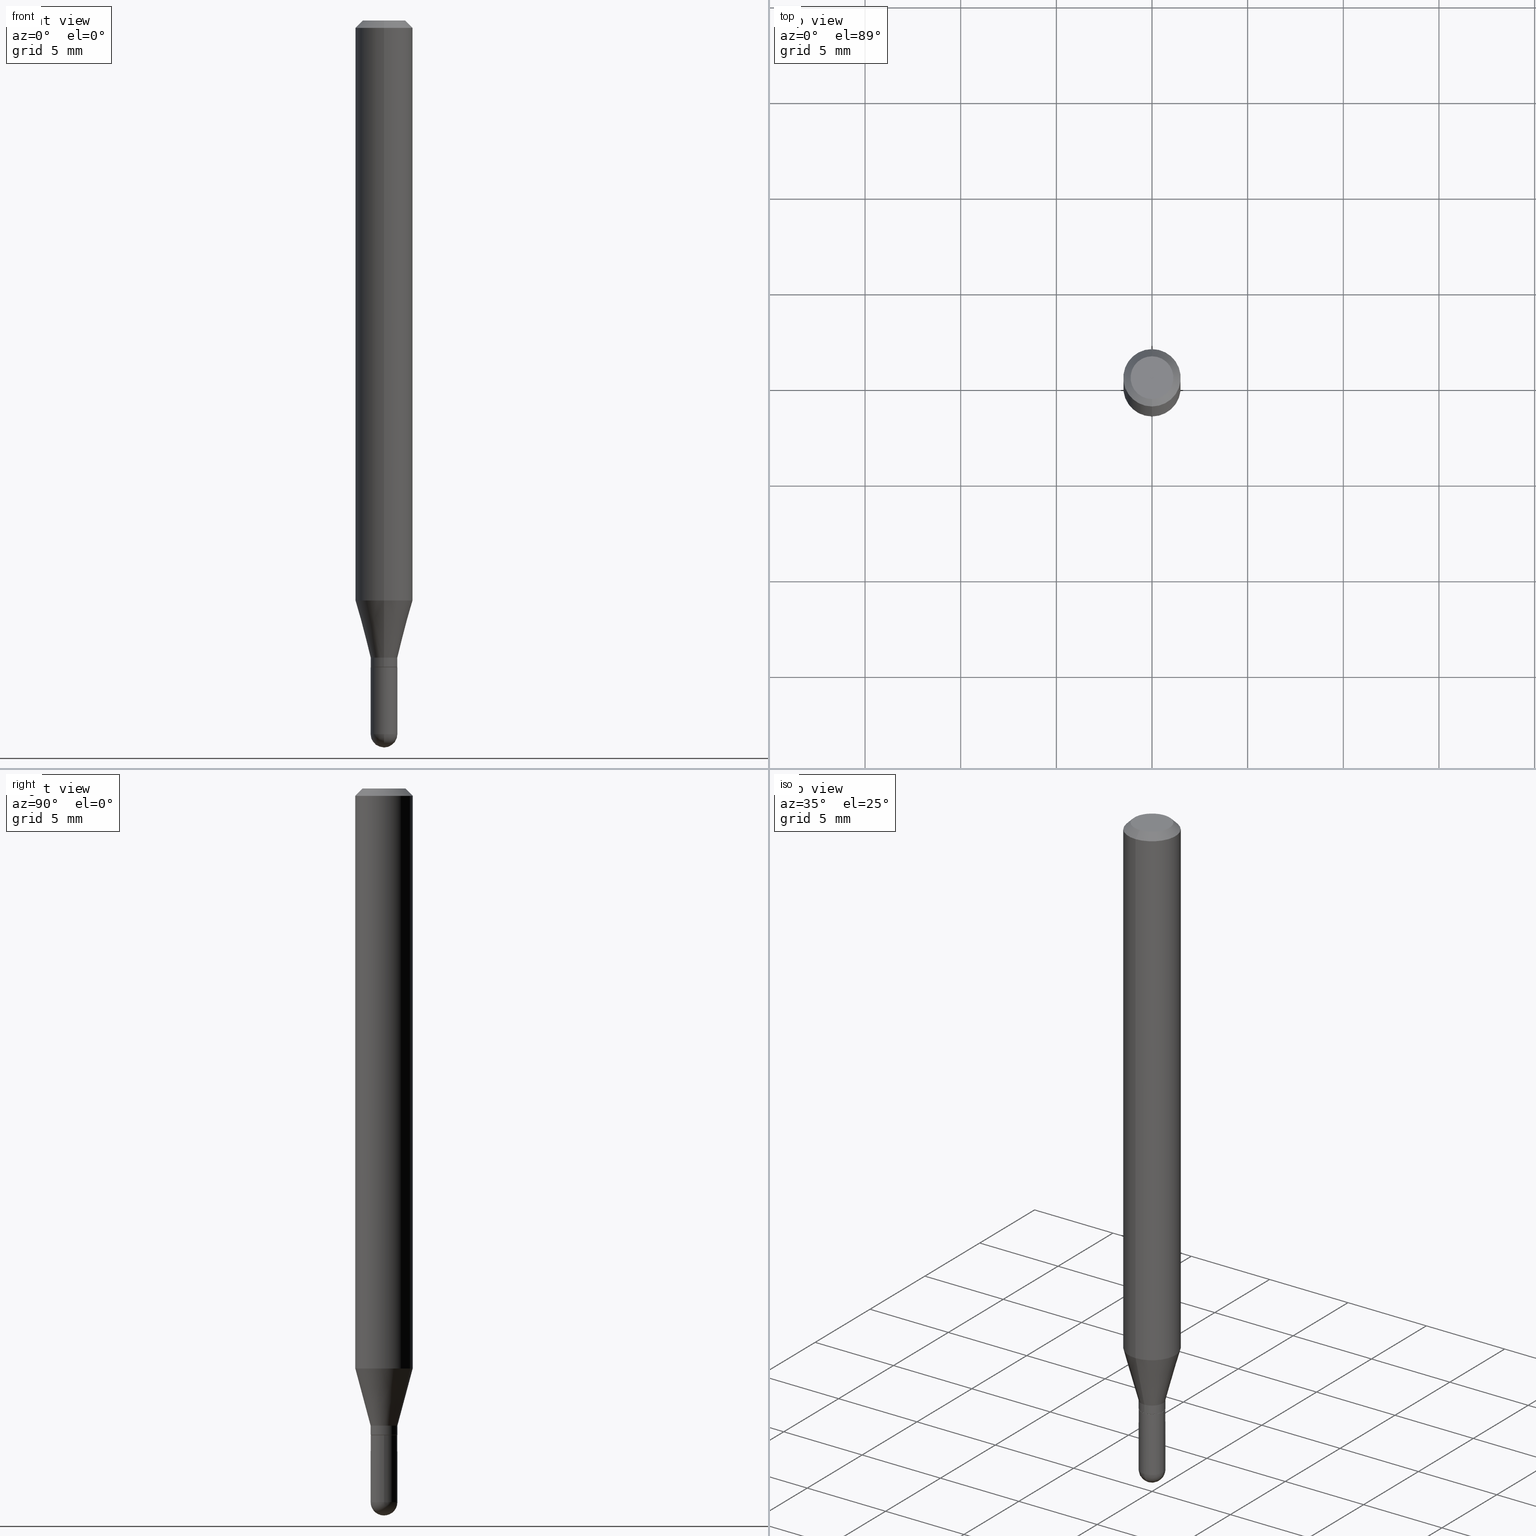
[diagram: canonical four-view strip — front | top / right | iso, engineering-drawing reading convention]
A machine part, canonical four-view strip (front | top / right | iso — engineering-drawing reading convention). The complete STEP part file that produces these views, byte-faithful:
ISO-10303-21;
HEADER;
FILE_DESCRIPTION (( 'STEP AP203' ),
    '1' );
FILE_NAME ('01983.STEP',
    '2024-03-07T19:50:54',
    ( '' ),
    ( '' ),
    'SwSTEP 2.0',
    'SolidWorks 2023',
    '' );
FILE_SCHEMA (( 'CONFIG_CONTROL_DESIGN' ));
ENDSEC;

DATA;
#1 = CONICAL_SURFACE ( 'NONE', #108, 0.02754999999999965463, 0.2617993877991502960 ) ;
#2 = VECTOR ( 'NONE', #480, 39.37007874015748143 ) ;
#3 = VERTEX_POINT ( 'NONE', #205 ) ;
#4 = DIRECTION ( 'NONE',  ( -6.982962677686265922E-15, -1.000000000000000000, 3.491500263023452586E-15 ) ) ;
#5 = CARTESIAN_POINT ( 'NONE',  ( 1.957545237019050979E-16, 0.02754999999999965463, -9.619083224629488958E-17 ) ) ;
#6 = DATE_AND_TIME ( #79, #243 ) ;
#7 = CARTESIAN_POINT ( 'NONE',  ( 3.591293215323181808E-29, -5.127414920158100475E-15, -1.468549999999999800 ) ) ;
#8 = ORIENTED_EDGE ( 'NONE', *, *, #62, .F. ) ;
#9 = CARTESIAN_POINT ( 'NONE',  ( 3.668183387250992270E-31, -5.237250394535186299E-17, -0.01500000000000002373 ) ) ;
#10 = ORIENTED_EDGE ( 'NONE', *, *, #265, .T. ) ;
#11 = DIRECTION ( 'NONE',  ( 0.000000000000000000, 0.000000000000000000, 1.000000000000000000 ) ) ;
#12 = EDGE_CURVE ( 'NONE', #332, #347, #212, .T. ) ;
#13 = COORDINATED_UNIVERSAL_TIME_OFFSET ( 5, 0, .BEHIND. ) ;
#14 = FACE_OUTER_BOUND ( 'NONE', #429, .T. ) ;
#15 = APPROVAL_DATE_TIME ( #377, #19 ) ;
#16 = CYLINDRICAL_SURFACE ( 'NONE', #281, 0.02754999999999999810 ) ;
#17 = DIRECTION ( 'NONE',  ( 1.000000000000000000, -6.982962677686265922E-15, 4.876176775795936353E-29 ) ) ;
#18 = EDGE_CURVE ( 'NONE', #3, #227, #389, .T. ) ;
#19 = APPROVAL ( #418, 'UNSPECIFIED' ) ;
#20 = PERSON_AND_ORGANIZATION_ROLE ( 'creator' ) ;
#21 = VECTOR ( 'NONE', #384, 39.37007874015748143 ) ;
#22 = FACE_OUTER_BOUND ( 'NONE', #55, .T. ) ;
#23 = ORIENTED_EDGE ( 'NONE', *, *, #370, .F. ) ;
#24 = FACE_OUTER_BOUND ( 'NONE', #264, .T. ) ;
#25 = DIRECTION ( 'NONE',  ( 1.000000000000000000, -6.982962677686265922E-15, 4.883557194083112901E-29 ) ) ;
#26 = AXIS2_PLACEMENT_3D ( 'NONE', #426, #385, #425 ) ;
#27 = AXIS2_PLACEMENT_3D ( 'NONE', #502, #374, #71 ) ;
#28 = VERTEX_POINT ( 'NONE', #427 ) ;
#29 = CYLINDRICAL_SURFACE ( 'NONE', #86, 0.02754999999999965463 ) ;
#30 = EDGE_CURVE ( 'NONE', #364, #225, #119, .T. ) ;
#31 = APPLICATION_CONTEXT ( 'configuration controlled 3d designs of mechanical parts and assemblies' ) ;
#32 = DIRECTION ( 'NONE',  ( -1.000000000000000000, 6.982962677686265922E-15, -4.876176775795935793E-29 ) ) ;
#33 = VERTEX_POINT ( 'NONE', #122 ) ;
#34 = DIRECTION ( 'NONE',  ( -2.445455591500657940E-29, 3.491500263023452192E-15, 1.000000000000000000 ) ) ;
#35 = DESIGN_CONTEXT ( 'detailed design', #31, 'design' ) ;
#36 = AXIS2_PLACEMENT_3D ( 'NONE', #453, #221, #135 ) ;
#37 = AXIS2_PLACEMENT_3D ( 'NONE', #238, #150, #32 ) ;
#38 = PLANE ( 'NONE',  #137 ) ;
#39 = LINE ( 'NONE', #216, #474 ) ;
#40 = DIRECTION ( 'NONE',  ( -2.445455591500657940E-29, 3.491500263023452192E-15, 1.000000000000000000 ) ) ;
#41 = DIRECTION ( 'NONE',  ( -6.982962677686265922E-15, -1.000000000000000000, 0.000000000000000000 ) ) ;
#42 = APPROVAL_ROLE ( '' ) ;
#43 = FACE_OUTER_BOUND ( 'NONE', #401, .T. ) ;
#44 = SPHERICAL_SURFACE ( 'NONE', #282, 0.02754999999999991483 ) ;
#45 = ORIENTED_EDGE ( 'NONE', *, *, #237, .F. ) ;
#46 = CIRCLE ( 'NONE', #420, 0.02754999999999999810 ) ;
#47 = ORIENTED_EDGE ( 'NONE', *, *, #217, .F. ) ;
#48 = ORIENTED_EDGE ( 'NONE', *, *, #387, .T. ) ;
#49 = DIRECTION ( 'NONE',  ( -6.982962677686265922E-15, -1.000000000000000000, 0.000000000000000000 ) ) ;
#50 = CARTESIAN_POINT ( 'NONE',  ( 3.254167755609924026E-29, -4.646139400005306183E-15, -1.330699999999999550 ) ) ;
#51 = ORIENTED_EDGE ( 'NONE', *, *, #237, .T. ) ;
#52 = ORIENTED_EDGE ( 'NONE', *, *, #197, .T. ) ;
#53 = ORIENTED_EDGE ( 'NONE', *, *, #424, .T. ) ;
#54 = CC_DESIGN_PERSON_AND_ORGANIZATION_ASSIGNMENT ( #454, #61, ( #339 ) ) ;
#55 = EDGE_LOOP ( 'NONE', ( #209, #235, #399, #481, #53 ) ) ;
#56 = AXIS2_PLACEMENT_3D ( 'NONE', #327, #470, #465 ) ;
#57 = MANIFOLD_SOLID_BREP ( 'Body-Move/Copy2[2]', #206 ) ;
#58 = ORIENTED_EDGE ( 'NONE', *, *, #224, .T. ) ;
#59 =( NAMED_UNIT ( * ) SI_UNIT ( $, .STERADIAN. ) SOLID_ANGLE_UNIT ( ) );
#60 = CALENDAR_DATE ( 2024, 7, 3 ) ;
#62 = EDGE_CURVE ( 'NONE', #28, #444, #67, .T. ) ;
#61 = PERSON_AND_ORGANIZATION_ROLE ( 'creator' ) ;
#63 = CARTESIAN_POINT ( 'NONE',  ( 3.254185340390560677E-29, -4.646114217598572614E-15, -1.330699999999999772 ) ) ;
#64 = LINE ( 'NONE', #101, #447 ) ;
#65 = ORIENTED_EDGE ( 'NONE', *, *, #116, .F. ) ;
#66 = CARTESIAN_POINT ( 'NONE',  ( -1.923806217702223543E-16, -0.02755000000000439042, -1.330199999999999827 ) ) ;
#67 = CIRCLE ( 'NONE', #492, 0.05904999999999999832 ) ;
#68 = LOCAL_TIME ( 14, 50, 54.00000000000000000, #423 ) ;
#69 = ORIENTED_EDGE ( 'NONE', *, *, #197, .F. ) ;
#70 = DIRECTION ( 'NONE',  ( -2.445468806185136597E-29, 3.491481338843145583E-15, 1.000000000000000000 ) ) ;
#71 = DIRECTION ( 'NONE',  ( -6.982962677686266711E-15, -1.000000000000000000, 0.000000000000000000 ) ) ;
#72 =( LENGTH_UNIT ( ) NAMED_UNIT ( * ) SI_UNIT ( $, .METRE. ) );
#73 = EDGE_CURVE ( 'NONE', #338, #255, #314, .T. ) ;
#74 = CARTESIAN_POINT ( 'NONE',  ( -0.02755000000000000157, -4.691010045176429992E-15, -1.330699999999999772 ) ) ;
#75 = CC_DESIGN_APPROVAL ( #252, ( #339 ) ) ;
#76 = EDGE_CURVE ( 'NONE', #256, #230, #336, .T. ) ;
#77 = EDGE_CURVE ( 'NONE', #3, #230, #507, .T. ) ;
#78 = CIRCLE ( 'NONE', #193, 0.02754999999999965463 ) ;
#79 = CALENDAR_DATE ( 2024, 7, 3 ) ;
#80 = EDGE_LOOP ( 'NONE', ( #289, #181, #301, #372 ) ) ;
#81 = CARTESIAN_POINT ( 'NONE',  ( -1.923806217702204068E-16, -0.02755000000000508778, -1.468549999999999800 ) ) ;
#82 = CARTESIAN_POINT ( 'NONE',  ( 0.02754999999999999810, -5.079145190648592548E-15, -1.468549999999999800 ) ) ;
#83 = CARTESIAN_POINT ( 'NONE',  ( 3.655131906243548589E-29, -5.228666083940705482E-15, -1.496099999999999541 ) ) ;
#84 = ORIENTED_EDGE ( 'NONE', *, *, #305, .T. ) ;
#85 = ORIENTED_EDGE ( 'NONE', *, *, #12, .F. ) ;
#86 = AXIS2_PLACEMENT_3D ( 'NONE', #102, #350, #208 ) ;
#87 = CC_DESIGN_APPROVAL ( #19, ( #110 ) ) ;
#88 = ORIENTED_EDGE ( 'NONE', *, *, #437, .F. ) ;
#89 = CARTESIAN_POINT ( 'NONE',  ( 3.206236826016511107E-29, -4.577705994850046141E-15, -1.311099999999999488 ) ) ;
#90 = CC_DESIGN_DATE_AND_TIME_ASSIGNMENT ( #173, #260, ( #382 ) ) ;
#91 = ORIENTED_EDGE ( 'NONE', *, *, #367, .T. ) ;
#92 = EDGE_LOOP ( 'NONE', ( #330, #410, #287, #366 ) ) ;
#93 = EDGE_CURVE ( 'NONE', #403, #442, #469, .T. ) ;
#94 = APPROVAL_ROLE ( '' ) ;
#95 = CARTESIAN_POINT ( 'NONE',  ( 3.206236826016511107E-29, -4.577705994850046141E-15, -1.311099999999999488 ) ) ;
#96 = ORIENTED_EDGE ( 'NONE', *, *, #471, .T. ) ;
#97 = LENGTH_MEASURE_WITH_UNIT ( LENGTH_MEASURE( 0.02539999999999999897 ), #72 );
#98 = LOCAL_TIME ( 14, 50, 54.00000000000000000, #490 ) ;
#99 = PERSON_AND_ORGANIZATION ( #123, #449 ) ;
#100 = DIMENSIONAL_EXPONENTS ( 1.000000000000000000, 0.000000000000000000, 0.000000000000000000, 0.000000000000000000, 0.000000000000000000, 0.000000000000000000, 0.000000000000000000 ) ;
#101 = CARTESIAN_POINT ( 'NONE',  ( -1.923806217702221325E-16, -0.02755000000000422736, -1.311099999999999488 ) ) ;
#102 = CARTESIAN_POINT ( 'NONE',  ( 0.000000000000000000, 0.000000000000000000, 0.000000000000000000 ) ) ;
#103 = PERSON_AND_ORGANIZATION ( #123, #449 ) ;
#104 = CARTESIAN_POINT ( 'NONE',  ( -3.536586717851222218E-16, -0.04404999999999999888, 1.299391773149393674E-16 ) ) ;
#105 = CARTESIAN_POINT ( 'NONE',  ( 3.591293215323181808E-29, -5.127414920158100475E-15, -1.468549999999999800 ) ) ;
#106 = DIRECTION ( 'NONE',  ( 1.000000000000000000, -6.982962677686265922E-15, 4.876176775795936353E-29 ) ) ;
#107 = DIRECTION ( 'NONE',  ( -6.982962677686266711E-15, -1.000000000000000000, 0.000000000000000000 ) ) ;
#108 = AXIS2_PLACEMENT_3D ( 'NONE', #89, #368, #41 ) ;
#109 = CARTESIAN_POINT ( 'NONE',  ( 5.835201672344848356E-46, -8.331211674665753758E-32, -2.386140927124367647E-17 ) ) ;
#110 = PRODUCT_DEFINITION_FORMATION_WITH_SPECIFIED_SOURCE ( 'ANY', '', #304, .NOT_KNOWN. ) ;
#111 = PERSON_AND_ORGANIZATION_ROLE ( 'classification_officer' ) ;
#112 = DIRECTION ( 'NONE',  ( -2.445468806185136597E-29, 3.491481338843145583E-15, 1.000000000000000000 ) ) ;
#113 = EDGE_CURVE ( 'NONE', #269, #225, #320, .T. ) ;
#114 = FACE_OUTER_BOUND ( 'NONE', #228, .T. ) ;
#115 = DIRECTION ( 'NONE',  ( 1.000000000000000000, -6.982962677686257244E-15, 0.000000000000000000 ) ) ;
#116 = EDGE_CURVE ( 'NONE', #444, #28, #344, .T. ) ;
#117 = CLOSED_SHELL ( 'NONE', ( #285, #204, #487, #398, #511 ) ) ;
#118 = DIRECTION ( 'NONE',  ( -2.445455591500657940E-29, 3.491500263023451797E-15, 1.000000000000000000 ) ) ;
#119 = CIRCLE ( 'NONE', #411, 0.02755000000000000157 ) ;
#120 = DIRECTION ( 'NONE',  ( -6.982962677686265922E-15, -1.000000000000000000, 3.491500263023451797E-15 ) ) ;
#121 = LOCAL_TIME ( 14, 50, 54.00000000000000000, #343 ) ;
#122 = CARTESIAN_POINT ( 'NONE',  ( 1.957545237019431358E-16, 0.02754999999999482516, -1.468549999999999800 ) ) ;
#123 = PERSON ( 'UNSPECIFIED', 'UNSPECIFIED', 'UNSPECIFIED', ('UNSPECIFIED'), ('UNSPECIFIED'), ('UNSPECIFIED') ) ;
#124 = APPROVAL_DATE_TIME ( #6, #286 ) ;
#125 = APPROVAL_STATUS ( 'not_yet_approved' ) ;
#126 = DIRECTION ( 'NONE',  ( -2.445455591500657940E-29, 3.491500263023451797E-15, 1.000000000000000000 ) ) ;
#127 = DIRECTION ( 'NONE',  ( -6.982962677686265922E-15, -1.000000000000000000, 0.000000000000000000 ) ) ;
#128 = AXIS2_PLACEMENT_3D ( 'NONE', #321, #466, #203 ) ;
#129 = VECTOR ( 'NONE', #457, 39.37007874015748143 ) ;
#130 = EDGE_CURVE ( 'NONE', #338, #441, #39, .T. ) ;
#131 = CARTESIAN_POINT ( 'NONE',  ( 2.918750043789793122E-29, -4.167246618998369739E-15, -1.193540399561579202 ) ) ;
#132 = DIRECTION ( 'NONE',  ( -6.982962677686265922E-15, -1.000000000000000000, 4.626330217890369336E-15 ) ) ;
#133 = DIRECTION ( 'NONE',  ( -6.982962677686265922E-15, -1.000000000000000000, 0.000000000000000000 ) ) ;
#134 = ADVANCED_FACE ( 'NONE', ( #160 ), #322, .T. ) ;
#135 = DIRECTION ( 'NONE',  ( -6.982962677686265922E-15, -1.000000000000000000, 0.000000000000000000 ) ) ;
#136 = DIRECTION ( 'NONE',  ( -2.445468806185136597E-29, 3.491481338843145583E-15, 1.000000000000000000 ) ) ;
#137 = AXIS2_PLACEMENT_3D ( 'NONE', #215, #126, #226 ) ;
#138 = PRODUCT_DEFINITION_SHAPE ( 'NONE', 'NONE',  #339 ) ;
#139 = CC_DESIGN_APPROVAL ( #286, ( #382 ) ) ;
#140 = DIRECTION ( 'NONE',  ( 6.982962677686265922E-15, 1.000000000000000000, -3.505890868245046092E-15 ) ) ;
#141 = ORIENTED_EDGE ( 'NONE', *, *, #76, .T. ) ;
#142 = FACE_OUTER_BOUND ( 'NONE', #231, .T. ) ;
#143 = ORIENTED_EDGE ( 'NONE', *, *, #130, .F. ) ;
#144 = MECHANICAL_CONTEXT ( 'NONE', #161, 'mechanical' ) ;
#145 = CARTESIAN_POINT ( 'NONE',  ( 3.254167755609924026E-29, -4.646139400005306183E-15, -1.330699999999999550 ) ) ;
#146 = AXIS2_PLACEMENT_3D ( 'NONE', #105, #70, #115 ) ;
#147 = AXIS2_PLACEMENT_3D ( 'NONE', #277, #419, #388 ) ;
#148 = CYLINDRICAL_SURFACE ( 'NONE', #165, 0.02754999999999999810 ) ;
#149 = PERSON_AND_ORGANIZATION_ROLE ( 'design_owner' ) ;
#150 = DIRECTION ( 'NONE',  ( 2.438088387897960049E-29, -3.491481338843145188E-15, -1.000000000000000000 ) ) ;
#151 = ORIENTED_EDGE ( 'NONE', *, *, #62, .T. ) ;
#152 = DIRECTION ( 'NONE',  ( -1.807323732225330928E-15, -0.2588190451025182970, 0.9659258262890689783 ) ) ;
#153 = ORIENTED_EDGE ( 'NONE', *, *, #113, .F. ) ;
#154 = ADVANCED_FACE ( 'NONE', ( #283 ), #245, .F. ) ;
#155 = AXIS2_PLACEMENT_3D ( 'NONE', #171, #360, #140 ) ;
#156 = DIRECTION ( 'NONE',  ( -4.851104656540964275E-15, -0.7071067811865500152, -0.7071067811865450192 ) ) ;
#157 = CIRCLE ( 'NONE', #27, 0.02705000000000000113 ) ;
#158 = LINE ( 'NONE', #318, #361 ) ;
#159 = CARTESIAN_POINT ( 'NONE',  ( 5.835201672344848356E-46, -8.331211674665753758E-32, -2.386140927124367647E-17 ) ) ;
#160 = FACE_OUTER_BOUND ( 'NONE', #195, .T. ) ;
#161 = APPLICATION_CONTEXT ( 'configuration controlled 3d designs of mechanical parts and assemblies' ) ;
#162 = CALENDAR_DATE ( 2024, 7, 3 ) ;
#163 = AXIS2_PLACEMENT_3D ( 'NONE', #210, #40, #218 ) ;
#164 = DIRECTION ( 'NONE',  ( 5.024295867788190974E-15, 0.7071067811865681119, 0.7071067811865270336 ) ) ;
#165 = AXIS2_PLACEMENT_3D ( 'NONE', #317, #112, #17 ) ;
#166 = DIRECTION ( 'NONE',  ( -6.982962677686265133E-15, -1.000000000000000000, 3.491500263023451797E-15 ) ) ;
#167 = ADVANCED_FACE ( 'NONE', ( #386 ), #29, .T. ) ;
#168 = AXIS2_PLACEMENT_3D ( 'NONE', #145, #303, #392 ) ;
#169 = CARTESIAN_POINT ( 'NONE',  ( 3.206236826016511107E-29, -4.577705994850046141E-15, -1.311099999999999488 ) ) ;
#170 = AXIS2_PLACEMENT_3D ( 'NONE', #349, #499, #107 ) ;
#171 = CARTESIAN_POINT ( 'NONE',  ( 3.668183387250992270E-31, -5.237250394535186299E-17, -0.01500000000000002373 ) ) ;
#172 = LINE ( 'NONE', #333, #493 ) ;
#173 = DATE_AND_TIME ( #162, #68 ) ;
#174 = ORIENTED_EDGE ( 'NONE', *, *, #437, .T. ) ;
#175 = SHAPE_DEFINITION_REPRESENTATION ( #138, #202 ) ;
#176 = EDGE_CURVE ( 'NONE', #371, #33, #295, .T. ) ;
#177 = CC_DESIGN_PERSON_AND_ORGANIZATION_ASSIGNMENT ( #194, #246, ( #110 ) ) ;
#178 = ORIENTED_EDGE ( 'NONE', *, *, #93, .T. ) ;
#179 = DIRECTION ( 'NONE',  ( 1.000000000000000000, -6.982962677686257244E-15, 0.000000000000000000 ) ) ;
#180 = ORIENTED_EDGE ( 'NONE', *, *, #30, .T. ) ;
#181 = ORIENTED_EDGE ( 'NONE', *, *, #406, .T. ) ;
#182 = CARTESIAN_POINT ( 'NONE',  ( 0.000000000000000000, 0.000000000000000000, 0.000000000000000000 ) ) ;
#183 = ORIENTED_EDGE ( 'NONE', *, *, #491, .T. ) ;
#184 = AXIS2_PLACEMENT_3D ( 'NONE', #159, #34, #166 ) ;
#185 = VECTOR ( 'NONE', #222, 39.37007874015748143 ) ;
#186 = EDGE_LOOP ( 'NONE', ( #408, #459, #443, #85 ) ) ;
#187 = EDGE_LOOP ( 'NONE', ( #45, #52, #151, #334 ) ) ;
#188 = CARTESIAN_POINT ( 'NONE',  ( -1.923806217702542046E-16, -0.02754999999999965463, 9.619083224629488958E-17 ) ) ;
#189 = EDGE_LOOP ( 'NONE', ( #311, #261, #485, #467 ) ) ;
#190 = PERSON_AND_ORGANIZATION ( #123, #449 ) ;
#191 = CARTESIAN_POINT ( 'NONE',  ( -1.923806217702221325E-16, -0.02755000000000422736, -1.311099999999999488 ) ) ;
#192 = VECTOR ( 'NONE', #213, 39.37007874015748143 ) ;
#193 = AXIS2_PLACEMENT_3D ( 'NONE', #169, #331, #476 ) ;
#194 = PERSON_AND_ORGANIZATION ( #123, #449 ) ;
#195 = EDGE_LOOP ( 'NONE', ( #452, #84, #498, #472 ) ) ;
#196 = FACE_OUTER_BOUND ( 'NONE', #189, .T. ) ;
#197 = EDGE_CURVE ( 'NONE', #442, #28, #200, .T. ) ;
#198 = PRODUCT_RELATED_PRODUCT_CATEGORY ( 'detail', '', ( #304 ) ) ;
#199 = DIRECTION ( 'NONE',  ( -2.445468806185136597E-29, 3.491481338843145583E-15, 1.000000000000000000 ) ) ;
#200 = LINE ( 'NONE', #353, #302 ) ;
#201 = EDGE_LOOP ( 'NONE', ( #422, #489, #434, #65 ) ) ;
#202 = ADVANCED_BREP_SHAPE_REPRESENTATION ( '01983', ( #396, #57, #448 ), #207 ) ;
#203 = DIRECTION ( 'NONE',  ( 6.982962677686265922E-15, 1.000000000000000000, -3.491500263023451797E-15 ) ) ;
#204 = ADVANCED_FACE ( 'NONE', ( #504 ), #417, .T. ) ;
#205 = CARTESIAN_POINT ( 'NONE',  ( 1.939781668625386436E-16, 0.02704999999999535901, -1.330699999999999550 ) ) ;
#206 = CLOSED_SHELL ( 'NONE', ( #167, #288, #355, #351, #319, #477, #272, #325, #154, #241, #431, #134 ) ) ;
#207 =( GEOMETRIC_REPRESENTATION_CONTEXT ( 3 ) GLOBAL_UNCERTAINTY_ASSIGNED_CONTEXT ( ( #329 ) ) GLOBAL_UNIT_ASSIGNED_CONTEXT ( ( #446, #271, #59 ) ) REPRESENTATION_CONTEXT ( 'NONE', 'WORKASPACE' ) );
#208 = DIRECTION ( 'NONE',  ( -6.982962677686265922E-15, -1.000000000000000000, 3.491500263023451797E-15 ) ) ;
#209 = ORIENTED_EDGE ( 'NONE', *, *, #497, .T. ) ;
#210 = CARTESIAN_POINT ( 'NONE',  ( 3.252945027814174889E-29, -4.644393649873795521E-15, -1.330199999999999827 ) ) ;
#211 = COORDINATED_UNIVERSAL_TIME_OFFSET ( 5, 0, .BEHIND. ) ;
#212 = CIRCLE ( 'NONE', #146, 0.02754999999999999810 ) ;
#213 = DIRECTION ( 'NONE',  ( -2.445468806185136877E-29, 3.491481338843145188E-15, 1.000000000000000000 ) ) ;
#214 = AXIS2_PLACEMENT_3D ( 'NONE', #131, #258, #132 ) ;
#215 = CARTESIAN_POINT ( 'NONE',  ( 3.254167755609924026E-29, -4.646139400005306183E-15, -1.330699999999999550 ) ) ;
#216 = CARTESIAN_POINT ( 'NONE',  ( 1.957545237019371700E-16, 0.02754999999999507843, -1.311099999999999488 ) ) ;
#217 = EDGE_CURVE ( 'NONE', #409, #28, #158, .T. ) ;
#218 = DIRECTION ( 'NONE',  ( -6.982962677686265922E-15, -1.000000000000000000, 0.000000000000000000 ) ) ;
#219 = DIRECTION ( 'NONE',  ( -2.445455591500657940E-29, 3.491500263023452192E-15, 1.000000000000000000 ) ) ;
#220 = CIRCLE ( 'NONE', #257, 0.04404999999999999888 ) ;
#221 = DIRECTION ( 'NONE',  ( -2.445455591500657940E-29, 3.491500263023452192E-15, 1.000000000000000000 ) ) ;
#222 = DIRECTION ( 'NONE',  ( -2.445455591500657940E-29, 3.491500263023451797E-15, 1.000000000000000000 ) ) ;
#223 = CIRCLE ( 'NONE', #214, 0.05904999999999999832 ) ;
#224 = EDGE_CURVE ( 'NONE', #409, #441, #482, .T. ) ;
#225 = VERTEX_POINT ( 'NONE', #74 ) ;
#226 = DIRECTION ( 'NONE',  ( -6.982962677686265922E-15, -1.000000000000000000, 3.491500263023451797E-15 ) ) ;
#227 = VERTEX_POINT ( 'NONE', #463 ) ;
#228 = EDGE_LOOP ( 'NONE', ( #505, #262 ) ) ;
#229 = LINE ( 'NONE', #5, #185 ) ;
#230 = VERTEX_POINT ( 'NONE', #500 ) ;
#231 = EDGE_LOOP ( 'NONE', ( #143, #342, #10, #23 ) ) ;
#232 = EDGE_LOOP ( 'NONE', ( #91, #375, #298, #494 ) ) ;
#233 = AXIS2_PLACEMENT_3D ( 'NONE', #458, #25, #464 ) ;
#234 = LOCAL_TIME ( 14, 50, 54.00000000000000000, #13 ) ;
#235 = ORIENTED_EDGE ( 'NONE', *, *, #113, .T. ) ;
#236 = CC_DESIGN_PERSON_AND_ORGANIZATION_ASSIGNMENT ( #373, #149, ( #304 ) ) ;
#237 = EDGE_CURVE ( 'NONE', #442, #403, #220, .T. ) ;
#238 = CARTESIAN_POINT ( 'NONE',  ( 1.923806217702892103E-16, 0.02754999999999535945, -1.330699999999999772 ) ) ;
#239 = CARTESIAN_POINT ( 'NONE',  ( -0.02754999999999999810, -4.691010045176429992E-15, -1.468549999999999800 ) ) ;
#240 = CARTESIAN_POINT ( 'NONE',  ( 4.195754854663390985E-16, 0.05904999999999999832, -2.061730905315348637E-16 ) ) ;
#241 = ADVANCED_FACE ( 'NONE', ( #114 ), #38, .F. ) ;
#242 = CARTESIAN_POINT ( 'NONE',  ( 0.000000000000000000, 0.000000000000000000, 0.000000000000000000 ) ) ;
#243 = LOCAL_TIME ( 14, 50, 54.00000000000000000, #211 ) ;
#244 = CARTESIAN_POINT ( 'NONE',  ( 3.591293215323181808E-29, -5.127414920158100475E-15, -1.468549999999999800 ) ) ;
#245 = PLANE ( 'NONE',  #128 ) ;
#246 = PERSON_AND_ORGANIZATION_ROLE ( 'design_supplier' ) ;
#247 = CARTESIAN_POINT ( 'NONE',  ( 3.588937232196492421E-29, -5.130788822089751023E-15, -1.468549999999999800 ) ) ;
#248 = AXIS2_PLACEMENT_3D ( 'NONE', #335, #293, #49 ) ;
#249 = DIRECTION ( 'NONE',  ( -2.445455591500657940E-29, 3.491500263023452192E-15, 1.000000000000000000 ) ) ;
#250 = CIRCLE ( 'NONE', #346, 0.02755000000000000157 ) ;
#251 = DIRECTION ( 'NONE',  ( -6.982962677686265922E-15, -1.000000000000000000, 3.505890868245046092E-15 ) ) ;
#252 = APPROVAL ( #270, 'UNSPECIFIED' ) ;
#253 = AXIS2_PLACEMENT_3D ( 'NONE', #182, #219, #4 ) ;
#254 = DIRECTION ( 'NONE',  ( -2.445455591500657940E-29, 3.491500263023452192E-15, 1.000000000000000000 ) ) ;
#255 = VERTEX_POINT ( 'NONE', #191 ) ;
#256 = VERTEX_POINT ( 'NONE', #66 ) ;
#257 = AXIS2_PLACEMENT_3D ( 'NONE', #109, #249, #279 ) ;
#258 = DIRECTION ( 'NONE',  ( -2.445455591500657940E-29, 3.491500263023452192E-15, 1.000000000000000000 ) ) ;
#259 = AXIS2_PLACEMENT_3D ( 'NONE', #244, #199, #462 ) ;
#260 = DATE_TIME_ROLE ( 'classification_date' ) ;
#261 = ORIENTED_EDGE ( 'NONE', *, *, #77, .T. ) ;
#262 = ORIENTED_EDGE ( 'NONE', *, *, #18, .F. ) ;
#263 = FACE_OUTER_BOUND ( 'NONE', #232, .T. ) ;
#264 = EDGE_LOOP ( 'NONE', ( #153, #96, #484, #294, #88 ) ) ;
#265 = EDGE_CURVE ( 'NONE', #255, #409, #64, .T. ) ;
#266 = APPROVAL_DATE_TIME ( #414, #252 ) ;
#267 = DIRECTION ( 'NONE',  ( -2.445455591500657940E-29, 3.491500263023452192E-15, 1.000000000000000000 ) ) ;
#268 = AXIS2_PLACEMENT_3D ( 'NONE', #247, #354, #276 ) ;
#269 = VERTEX_POINT ( 'NONE', #239 ) ;
#270 = APPROVAL_STATUS ( 'not_yet_approved' ) ;
#271 =( NAMED_UNIT ( * ) PLANE_ANGLE_UNIT ( ) SI_UNIT ( $, .RADIAN. ) );
#272 = ADVANCED_FACE ( 'NONE', ( #312 ), #496, .T. ) ;
#273 = CARTESIAN_POINT ( 'NONE',  ( 4.195754854663679906E-16, 0.05904999999999580029, -1.193540399561579424 ) ) ;
#274 = DIRECTION ( 'NONE',  ( -2.445455591500657940E-29, 3.491500263023452192E-15, 1.000000000000000000 ) ) ;
#275 = LINE ( 'NONE', #416, #21 ) ;
#276 = DIRECTION ( 'NONE',  ( 7.105427357601000281E-15, 1.000000000000000000, 0.000000000000000000 ) ) ;
#277 = CARTESIAN_POINT ( 'NONE',  ( 3.591293215323181808E-29, -5.127414920158100475E-15, -1.468549999999999800 ) ) ;
#278 = AXIS2_PLACEMENT_3D ( 'NONE', #50, #456, #345 ) ;
#279 = DIRECTION ( 'NONE',  ( -6.982962677686265133E-15, -1.000000000000000000, 3.491500263023451797E-15 ) ) ;
#280 = DIRECTION ( 'NONE',  ( 1.839019923739601104E-15, 0.2588190451025250693, 0.9659258262890670910 ) ) ;
#281 = AXIS2_PLACEMENT_3D ( 'NONE', #242, #383, #106 ) ;
#282 = AXIS2_PLACEMENT_3D ( 'NONE', #363, #479, #133 ) ;
#283 = FACE_OUTER_BOUND ( 'NONE', #478, .T. ) ;
#284 = CARTESIAN_POINT ( 'NONE',  ( 3.668183387250992270E-31, -5.237250394535186299E-17, -0.01500000000000002373 ) ) ;
#285 = ADVANCED_FACE ( 'NONE', ( #22 ), #16, .T. ) ;
#286 = APPROVAL ( #125, 'UNSPECIFIED' ) ;
#287 = ORIENTED_EDGE ( 'NONE', *, *, #421, .T. ) ;
#288 = ADVANCED_FACE ( 'NONE', ( #196 ), #381, .T. ) ;
#289 = ORIENTED_EDGE ( 'NONE', *, *, #176, .F. ) ;
#290 = CONICAL_SURFACE ( 'NONE', #460, 0.05904999999999999832, 0.7853981633974483900 ) ;
#291 = DIRECTION ( 'NONE',  ( 6.982962677686265922E-15, 1.000000000000000000, -3.505890868245046092E-15 ) ) ;
#292 = DIRECTION ( 'NONE',  ( -2.445468806185136877E-29, 3.491481338843145188E-15, 1.000000000000000000 ) ) ;
#293 = DIRECTION ( 'NONE',  ( -1.000000000000000000, 6.982962677686265922E-15, -4.883557194083112340E-29 ) ) ;
#294 = ORIENTED_EDGE ( 'NONE', *, *, #391, .T. ) ;
#295 = CIRCLE ( 'NONE', #268, 0.02754999999999991483 ) ;
#296 = CARTESIAN_POINT ( 'NONE',  ( 3.076650045841527529E-16, 0.02754999999999507843, -1.311099999999999488 ) ) ;
#297 = EDGE_CURVE ( 'NONE', #441, #444, #506, .T. ) ;
#298 = ORIENTED_EDGE ( 'NONE', *, *, #224, .F. ) ;
#299 = ORIENTED_EDGE ( 'NONE', *, *, #297, .T. ) ;
#300 = APPROVAL_ROLE ( '' ) ;
#301 = ORIENTED_EDGE ( 'NONE', *, *, #471, .F. ) ;
#302 = VECTOR ( 'NONE', #156, 39.37007874015748143 ) ;
#303 = DIRECTION ( 'NONE',  ( -2.445455591500657940E-29, 3.491500263023452192E-15, 1.000000000000000000 ) ) ;
#304 = PRODUCT ( '01983', '01983', '', ( #144 ) ) ;
#305 = EDGE_CURVE ( 'NONE', #230, #256, #503, .T. ) ;
#306 = CC_DESIGN_DATE_AND_TIME_ASSIGNMENT ( #415, #380, ( #339 ) ) ;
#307 = CALENDAR_DATE ( 2024, 7, 3 ) ;
#308 = CARTESIAN_POINT ( 'NONE',  ( 4.195754854663684343E-16, 0.05904999999999994975, -0.01500000000000023016 ) ) ;
#309 = CARTESIAN_POINT ( 'NONE',  ( 0.000000000000000000, 0.000000000000000000, 0.000000000000000000 ) ) ;
#310 = DIRECTION ( 'NONE',  ( -2.445455591500657940E-29, 3.491500263023451797E-15, 1.000000000000000000 ) ) ;
#311 = ORIENTED_EDGE ( 'NONE', *, *, #455, .T. ) ;
#312 = FACE_OUTER_BOUND ( 'NONE', #201, .T. ) ;
#313 = PERSON_AND_ORGANIZATION ( #123, #449 ) ;
#314 = CIRCLE ( 'NONE', #402, 0.02754999999999965463 ) ;
#315 = AXIS2_PLACEMENT_3D ( 'NONE', #95, #267, #412 ) ;
#316 = SECURITY_CLASSIFICATION_LEVEL ( 'unclassified' ) ;
#317 = CARTESIAN_POINT ( 'NONE',  ( 0.000000000000000000, 0.000000000000000000, 0.000000000000000000 ) ) ;
#318 = CARTESIAN_POINT ( 'NONE',  ( -4.123439461173739834E-16, -0.05904999999999999832, 2.061730905315348637E-16 ) ) ;
#319 = ADVANCED_FACE ( 'NONE', ( #263 ), #1, .T. ) ;
#320 = LINE ( 'NONE', #395, #192 ) ;
#321 = CARTESIAN_POINT ( 'NONE',  ( 3.075995059520799729E-16, 0.04404999999999999888, -1.657312912218049006E-16 ) ) ;
#322 = CYLINDRICAL_SURFACE ( 'NONE', #508, 0.02754999999999965463 ) ;
#323 = VECTOR ( 'NONE', #310, 39.37007874015748143 ) ;
#324 = CIRCLE ( 'NONE', #248, 0.02754999999999991483 ) ;
#325 = ADVANCED_FACE ( 'NONE', ( #397 ), #290, .T. ) ;
#326 = CC_DESIGN_PERSON_AND_ORGANIZATION_ASSIGNMENT ( #313, #111, ( #382 ) ) ;
#327 = CARTESIAN_POINT ( 'NONE',  ( 3.668183387250992270E-31, -5.237250394535186299E-17, -0.01500000000000002373 ) ) ;
#328 = DIRECTION ( 'NONE',  ( 1.000000000000000000, -6.982962677686256455E-15, 0.000000000000000000 ) ) ;
#329 = UNCERTAINTY_MEASURE_WITH_UNIT (LENGTH_MEASURE( 1.000000000000000082E-05 ), #446, 'distance_accuracy_value', 'NONE');
#330 = ORIENTED_EDGE ( 'NONE', *, *, #77, .F. ) ;
#331 = DIRECTION ( 'NONE',  ( -2.445455591500657940E-29, 3.491500263023452192E-15, 1.000000000000000000 ) ) ;
#332 = VERTEX_POINT ( 'NONE', #81 ) ;
#333 = CARTESIAN_POINT ( 'NONE',  ( 0.02754999999999999810, -1.923806217702566205E-16, 1.343386701731780333E-30 ) ) ;
#334 = ORIENTED_EDGE ( 'NONE', *, *, #491, .F. ) ;
#335 = CARTESIAN_POINT ( 'NONE',  ( 3.588937232196492421E-29, -5.130788822089751023E-15, -1.468549999999999800 ) ) ;
#336 = CIRCLE ( 'NONE', #163, 0.02754999999999965463 ) ;
#337 = CIRCLE ( 'NONE', #147, 0.02754999999999999810 ) ;
#338 = VERTEX_POINT ( 'NONE', #296 ) ;
#339 = PRODUCT_DEFINITION ( 'UNKNOWN', '', #110, #35 ) ;
#340 = ORIENTED_EDGE ( 'NONE', *, *, #116, .T. ) ;
#341 = DIRECTION ( 'NONE',  ( -2.445468806185136597E-29, 3.491481338843145583E-15, 1.000000000000000000 ) ) ;
#342 = ORIENTED_EDGE ( 'NONE', *, *, #73, .T. ) ;
#343 = COORDINATED_UNIVERSAL_TIME_OFFSET ( 5, 0, .BEHIND. ) ;
#344 = CIRCLE ( 'NONE', #56, 0.05904999999999999832 ) ;
#345 = DIRECTION ( 'NONE',  ( -6.982962677686266711E-15, -1.000000000000000000, 0.000000000000000000 ) ) ;
#346 = AXIS2_PLACEMENT_3D ( 'NONE', #63, #341, #495 ) ;
#347 = VERTEX_POINT ( 'NONE', #82 ) ;
#348 = APPLICATION_PROTOCOL_DEFINITION ( 'international standard', 'config_control_design', 1994, #31 ) ;
#349 = CARTESIAN_POINT ( 'NONE',  ( 3.254167755609924026E-29, -4.646139400005306183E-15, -1.330699999999999550 ) ) ;
#350 = DIRECTION ( 'NONE',  ( -2.445455591500657940E-29, 3.491500263023452192E-15, 1.000000000000000000 ) ) ;
#351 = ADVANCED_FACE ( 'NONE', ( #43 ), #362, .T. ) ;
#352 = AXIS2_PLACEMENT_3D ( 'NONE', #309, #274, #451 ) ;
#353 = CARTESIAN_POINT ( 'NONE',  ( -4.051124067684085231E-16, -0.05905000000000005383, -0.01499999999999981730 ) ) ;
#354 = DIRECTION ( 'NONE',  ( 1.000000000000000000, -7.105427357601001070E-15, 4.926315508542082329E-29 ) ) ;
#355 = ADVANCED_FACE ( 'NONE', ( #483 ), #369, .T. ) ;
#356 = VECTOR ( 'NONE', #164, 39.37007874015748143 ) ;
#357 = CIRCLE ( 'NONE', #259, 0.02754999999999999810 ) ;
#358 = EDGE_LOOP ( 'NONE', ( #69, #439, #183, #340 ) ) ;
#359 = CARTESIAN_POINT ( 'NONE',  ( 0.000000000000000000, 0.000000000000000000, 0.000000000000000000 ) ) ;
#360 = DIRECTION ( 'NONE',  ( 2.445455591500657940E-29, -3.491500263023452192E-15, -1.000000000000000000 ) ) ;
#361 = VECTOR ( 'NONE', #118, 39.37007874015748143 ) ;
#362 = CYLINDRICAL_SURFACE ( 'NONE', #253, 0.05904999999999999832 ) ;
#363 = CARTESIAN_POINT ( 'NONE',  ( 3.588937232196492421E-29, -5.130788822089751023E-15, -1.468549999999999800 ) ) ;
#364 = VERTEX_POINT ( 'NONE', #512 ) ;
#365 = CARTESIAN_POINT ( 'NONE',  ( -1.888891404313809742E-16, -0.02705000000000464672, -1.330699999999999550 ) ) ;
#366 = ORIENTED_EDGE ( 'NONE', *, *, #305, .F. ) ;
#367 = EDGE_CURVE ( 'NONE', #255, #338, #78, .T. ) ;
#368 = DIRECTION ( 'NONE',  ( -2.445455591500657940E-29, 3.491500263023452192E-15, 1.000000000000000000 ) ) ;
#369 = CONICAL_SURFACE ( 'NONE', #155, 0.05904999999999999832, 0.7853981633974483900 ) ;
#370 = EDGE_CURVE ( 'NONE', #441, #409, #223, .T. ) ;
#371 = VERTEX_POINT ( 'NONE', #83 ) ;
#372 = ORIENTED_EDGE ( 'NONE', *, *, #497, .F. ) ;
#373 = PERSON_AND_ORGANIZATION ( #123, #449 ) ;
#374 = DIRECTION ( 'NONE',  ( -2.445455591500657940E-29, 3.491500263023452192E-15, 1.000000000000000000 ) ) ;
#375 = ORIENTED_EDGE ( 'NONE', *, *, #130, .T. ) ;
#376 = CARTESIAN_POINT ( 'NONE',  ( 0.000000000000000000, 0.000000000000000000, 0.000000000000000000 ) ) ;
#377 = DATE_AND_TIME ( #60, #98 ) ;
#378 = LINE ( 'NONE', #188, #129 ) ;
#379 = ORIENTED_EDGE ( 'NONE', *, *, #510, .F. ) ;
#380 = DATE_TIME_ROLE ( 'creation_date' ) ;
#381 = CONICAL_SURFACE ( 'NONE', #170, 0.02705000000000000113, 0.7853981633974739252 ) ;
#382 = SECURITY_CLASSIFICATION ( '', '', #316 ) ;
#383 = DIRECTION ( 'NONE',  ( -2.445468806185136597E-29, 3.491481338843145583E-15, 1.000000000000000000 ) ) ;
#384 = DIRECTION ( 'NONE',  ( 4.937700262164548042E-15, 0.7071067811865451302, -0.7071067811865499042 ) ) ;
#385 = DIRECTION ( 'NONE',  ( -2.445455591500657940E-29, 3.491500263023452192E-15, 1.000000000000000000 ) ) ;
#386 = FACE_OUTER_BOUND ( 'NONE', #445, .T. ) ;
#387 = EDGE_CURVE ( 'NONE', #230, #338, #229, .T. ) ;
#388 = DIRECTION ( 'NONE',  ( 1.000000000000000000, -6.982962677686257244E-15, 0.000000000000000000 ) ) ;
#389 = CIRCLE ( 'NONE', #168, 0.02705000000000000113 ) ;
#390 = DIRECTION ( 'NONE',  ( -2.445455591500657940E-29, 3.491500263023452192E-15, 1.000000000000000000 ) ) ;
#391 = EDGE_CURVE ( 'NONE', #347, #364, #172, .T. ) ;
#392 = DIRECTION ( 'NONE',  ( -6.982962677686266711E-15, -1.000000000000000000, 0.000000000000000000 ) ) ;
#393 = CARTESIAN_POINT ( 'NONE',  ( 1.922018100231396241E-16, 0.02704999999999535901, -1.330699999999999550 ) ) ;
#394 = APPROVAL_PERSON_ORGANIZATION ( #103, #19, #300 ) ;
#395 = CARTESIAN_POINT ( 'NONE',  ( -0.02754999999999999810, 1.957545237019075877E-16, -1.355166617365226390E-30 ) ) ;
#396 = MANIFOLD_SOLID_BREP ( 'Body-Move/Copy2[1]', #117 ) ;
#397 = FACE_OUTER_BOUND ( 'NONE', #358, .T. ) ;
#398 = ADVANCED_FACE ( 'NONE', ( #435 ), #44, .T. ) ;
#399 = ORIENTED_EDGE ( 'NONE', *, *, #30, .F. ) ;
#400 = LINE ( 'NONE', #365, #2 ) ;
#401 = EDGE_LOOP ( 'NONE', ( #58, #299, #8, #47 ) ) ;
#402 = AXIS2_PLACEMENT_3D ( 'NONE', #473, #254, #127 ) ;
#403 = VERTEX_POINT ( 'NONE', #405 ) ;
#404 = CONICAL_SURFACE ( 'NONE', #315, 0.02754999999999965463, 0.2617993877991502960 ) ;
#405 = CARTESIAN_POINT ( 'NONE',  ( 3.599717260347271507E-16, 0.04404999999999999888, -1.776619958574267204E-16 ) ) ;
#406 = EDGE_CURVE ( 'NONE', #371, #332, #324, .T. ) ;
#407 = CC_DESIGN_PERSON_AND_ORGANIZATION_ASSIGNMENT ( #190, #20, ( #110 ) ) ;
#408 = ORIENTED_EDGE ( 'NONE', *, *, #406, .F. ) ;
#409 = VERTEX_POINT ( 'NONE', #438 ) ;
#410 = ORIENTED_EDGE ( 'NONE', *, *, #18, .T. ) ;
#411 = AXIS2_PLACEMENT_3D ( 'NONE', #509, #428, #328 ) ;
#412 = DIRECTION ( 'NONE',  ( -6.982962677686265922E-15, -1.000000000000000000, 0.000000000000000000 ) ) ;
#413 = ORIENTED_EDGE ( 'NONE', *, *, #367, .F. ) ;
#414 = DATE_AND_TIME ( #307, #121 ) ;
#415 = DATE_AND_TIME ( #501, #234 ) ;
#416 = CARTESIAN_POINT ( 'NONE',  ( 4.123439461173743285E-16, 0.05904999999999994975, -0.01500000000000023016 ) ) ;
#417 = SPHERICAL_SURFACE ( 'NONE', #233, 0.02754999999999991483 ) ;
#418 = APPROVAL_STATUS ( 'not_yet_approved' ) ;
#419 = DIRECTION ( 'NONE',  ( -2.445468806185136597E-29, 3.491481338843145583E-15, 1.000000000000000000 ) ) ;
#420 = AXIS2_PLACEMENT_3D ( 'NONE', #7, #136, #179 ) ;
#421 = EDGE_CURVE ( 'NONE', #227, #256, #400, .T. ) ;
#422 = ORIENTED_EDGE ( 'NONE', *, *, #297, .F. ) ;
#423 = COORDINATED_UNIVERSAL_TIME_OFFSET ( 5, 0, .BEHIND. ) ;
#424 = EDGE_CURVE ( 'NONE', #347, #33, #46, .T. ) ;
#425 = DIRECTION ( 'NONE',  ( -6.982962677686265922E-15, -1.000000000000000000, 4.626330217890369336E-15 ) ) ;
#426 = CARTESIAN_POINT ( 'NONE',  ( 2.918750043789793122E-29, -4.167246618998369739E-15, -1.193540399561579202 ) ) ;
#427 = CARTESIAN_POINT ( 'NONE',  ( -4.123439461173736383E-16, -0.05905000000000005383, -0.01499999999999981730 ) ) ;
#428 = DIRECTION ( 'NONE',  ( -2.445468806185136597E-29, 3.491481338843145583E-15, 1.000000000000000000 ) ) ;
#429 = EDGE_LOOP ( 'NONE', ( #180, #174 ) ) ;
#430 = APPROVAL_PERSON_ORGANIZATION ( #99, #252, #94 ) ;
#431 = ADVANCED_FACE ( 'NONE', ( #433 ), #475, .T. ) ;
#432 = DIRECTION ( 'NONE',  ( 2.445455591500657940E-29, -3.491500263023452192E-15, -1.000000000000000000 ) ) ;
#433 = FACE_OUTER_BOUND ( 'NONE', #92, .T. ) ;
#434 = ORIENTED_EDGE ( 'NONE', *, *, #217, .T. ) ;
#435 = FACE_OUTER_BOUND ( 'NONE', #80, .T. ) ;
#436 = PERSON_AND_ORGANIZATION ( #123, #449 ) ;
#437 = EDGE_CURVE ( 'NONE', #225, #364, #250, .T. ) ;
#438 = CARTESIAN_POINT ( 'NONE',  ( -4.123439461173449928E-16, -0.05905000000000418248, -1.193540399561578758 ) ) ;
#439 = ORIENTED_EDGE ( 'NONE', *, *, #93, .F. ) ;
#440 = APPROVAL_PERSON_ORGANIZATION ( #436, #286, #42 ) ;
#441 = VERTEX_POINT ( 'NONE', #273 ) ;
#442 = VERTEX_POINT ( 'NONE', #104 ) ;
#443 = ORIENTED_EDGE ( 'NONE', *, *, #424, .F. ) ;
#444 = VERTEX_POINT ( 'NONE', #308 ) ;
#445 = EDGE_LOOP ( 'NONE', ( #141, #48, #413, #379 ) ) ;
#446 =( CONVERSION_BASED_UNIT ( 'INCH', #97 ) LENGTH_UNIT ( ) NAMED_UNIT ( #100 ) );
#447 = VECTOR ( 'NONE', #152, 39.37007874015748143 ) ;
#448 = AXIS2_PLACEMENT_3D ( 'NONE', #376, #11, #450 ) ;
#449 = ORGANIZATION ( 'UNSPECIFIED', 'UNSPECIFIED', '' ) ;
#450 = DIRECTION ( 'NONE',  ( 1.000000000000000000, 0.000000000000000000, 0.000000000000000000 ) ) ;
#451 = DIRECTION ( 'NONE',  ( -6.982962677686265922E-15, -1.000000000000000000, 3.491500263023452586E-15 ) ) ;
#452 = ORIENTED_EDGE ( 'NONE', *, *, #387, .F. ) ;
#453 = CARTESIAN_POINT ( 'NONE',  ( 3.252945027814174889E-29, -4.644393649873795521E-15, -1.330199999999999827 ) ) ;
#455 = EDGE_CURVE ( 'NONE', #227, #3, #157, .T. ) ;
#454 = PERSON_AND_ORGANIZATION ( #123, #449 ) ;
#456 = DIRECTION ( 'NONE',  ( -2.445455591500657940E-29, 3.491500263023452192E-15, 1.000000000000000000 ) ) ;
#457 = DIRECTION ( 'NONE',  ( -2.445455591500657940E-29, 3.491500263023451797E-15, 1.000000000000000000 ) ) ;
#458 = CARTESIAN_POINT ( 'NONE',  ( 3.588937232196492421E-29, -5.130788822089751023E-15, -1.468549999999999800 ) ) ;
#459 = ORIENTED_EDGE ( 'NONE', *, *, #176, .T. ) ;
#460 = AXIS2_PLACEMENT_3D ( 'NONE', #9, #432, #291 ) ;
#461 = CC_DESIGN_SECURITY_CLASSIFICATION ( #382, ( #110 ) ) ;
#462 = DIRECTION ( 'NONE',  ( 1.000000000000000000, -6.982962677686257244E-15, 0.000000000000000000 ) ) ;
#463 = CARTESIAN_POINT ( 'NONE',  ( -1.888891404313809742E-16, -0.02705000000000464672, -1.330699999999999550 ) ) ;
#464 = DIRECTION ( 'NONE',  ( -6.982962677686265922E-15, -1.000000000000000000, 0.000000000000000000 ) ) ;
#465 = DIRECTION ( 'NONE',  ( -6.982962677686265922E-15, -1.000000000000000000, 3.505890868245046092E-15 ) ) ;
#466 = DIRECTION ( 'NONE',  ( 2.445455591500657940E-29, -3.491500263023451797E-15, -1.000000000000000000 ) ) ;
#467 = ORIENTED_EDGE ( 'NONE', *, *, #421, .F. ) ;
#468 = DIRECTION ( 'NONE',  ( -2.445455591500657940E-29, 3.491500263023452192E-15, 1.000000000000000000 ) ) ;
#469 = CIRCLE ( 'NONE', #184, 0.04404999999999999888 ) ;
#470 = DIRECTION ( 'NONE',  ( -2.445455591500657940E-29, 3.491500263023452192E-15, 1.000000000000000000 ) ) ;
#471 = EDGE_CURVE ( 'NONE', #269, #332, #337, .T. ) ;
#472 = ORIENTED_EDGE ( 'NONE', *, *, #73, .F. ) ;
#473 = CARTESIAN_POINT ( 'NONE',  ( 3.206236826016511107E-29, -4.577705994850046141E-15, -1.311099999999999488 ) ) ;
#474 = VECTOR ( 'NONE', #280, 39.37007874015748143 ) ;
#475 = CONICAL_SURFACE ( 'NONE', #278, 0.02705000000000000113, 0.7853981633974739252 ) ;
#476 = DIRECTION ( 'NONE',  ( -6.982962677686265922E-15, -1.000000000000000000, 0.000000000000000000 ) ) ;
#477 = ADVANCED_FACE ( 'NONE', ( #142 ), #404, .T. ) ;
#478 = EDGE_LOOP ( 'NONE', ( #178, #51 ) ) ;
#479 = DIRECTION ( 'NONE',  ( 1.000000000000000000, -6.982962677686265922E-15, 4.883557194083112901E-29 ) ) ;
#480 = DIRECTION ( 'NONE',  ( -4.937700262164674260E-15, -0.7071067811865632269, 0.7071067811865319186 ) ) ;
#481 = ORIENTED_EDGE ( 'NONE', *, *, #391, .F. ) ;
#482 = CIRCLE ( 'NONE', #26, 0.05904999999999999832 ) ;
#483 = FACE_OUTER_BOUND ( 'NONE', #187, .T. ) ;
#484 = ORIENTED_EDGE ( 'NONE', *, *, #12, .T. ) ;
#485 = ORIENTED_EDGE ( 'NONE', *, *, #76, .F. ) ;
#486 = APPLICATION_PROTOCOL_DEFINITION ( 'international standard', 'config_control_design', 1994, #161 ) ;
#487 = ADVANCED_FACE ( 'NONE', ( #14 ), #488, .F. ) ;
#488 = PLANE ( 'NONE',  #37 ) ;
#489 = ORIENTED_EDGE ( 'NONE', *, *, #370, .T. ) ;
#490 = COORDINATED_UNIVERSAL_TIME_OFFSET ( 5, 0, .BEHIND. ) ;
#491 = EDGE_CURVE ( 'NONE', #403, #444, #275, .T. ) ;
#492 = AXIS2_PLACEMENT_3D ( 'NONE', #284, #390, #251 ) ;
#493 = VECTOR ( 'NONE', #292, 39.37007874015748143 ) ;
#494 = ORIENTED_EDGE ( 'NONE', *, *, #265, .F. ) ;
#495 = DIRECTION ( 'NONE',  ( 1.000000000000000000, -6.982962677686256455E-15, 0.000000000000000000 ) ) ;
#496 = CYLINDRICAL_SURFACE ( 'NONE', #352, 0.05904999999999999832 ) ;
#497 = EDGE_CURVE ( 'NONE', #33, #269, #357, .T. ) ;
#498 = ORIENTED_EDGE ( 'NONE', *, *, #510, .T. ) ;
#499 = DIRECTION ( 'NONE',  ( -2.445455591500657940E-29, 3.491500263023452192E-15, 1.000000000000000000 ) ) ;
#500 = CARTESIAN_POINT ( 'NONE',  ( 1.957545237019369481E-16, 0.02754999999999491536, -1.330199999999999827 ) ) ;
#501 = CALENDAR_DATE ( 2024, 7, 3 ) ;
#502 = CARTESIAN_POINT ( 'NONE',  ( 3.254167755609924026E-29, -4.646139400005306183E-15, -1.330699999999999550 ) ) ;
#503 = CIRCLE ( 'NONE', #36, 0.02754999999999965463 ) ;
#504 = FACE_OUTER_BOUND ( 'NONE', #186, .T. ) ;
#505 = ORIENTED_EDGE ( 'NONE', *, *, #455, .F. ) ;
#506 = LINE ( 'NONE', #240, #323 ) ;
#507 = LINE ( 'NONE', #393, #356 ) ;
#508 = AXIS2_PLACEMENT_3D ( 'NONE', #359, #468, #120 ) ;
#509 = CARTESIAN_POINT ( 'NONE',  ( 3.254185340390560677E-29, -4.646114217598572614E-15, -1.330699999999999772 ) ) ;
#510 = EDGE_CURVE ( 'NONE', #256, #255, #378, .T. ) ;
#511 = ADVANCED_FACE ( 'NONE', ( #24 ), #148, .T. ) ;
#512 = CARTESIAN_POINT ( 'NONE',  ( 0.02755000000000000157, -4.838494839368829407E-15, -1.330699999999999772 ) ) ;
ENDSEC;
END-ISO-10303-21;
